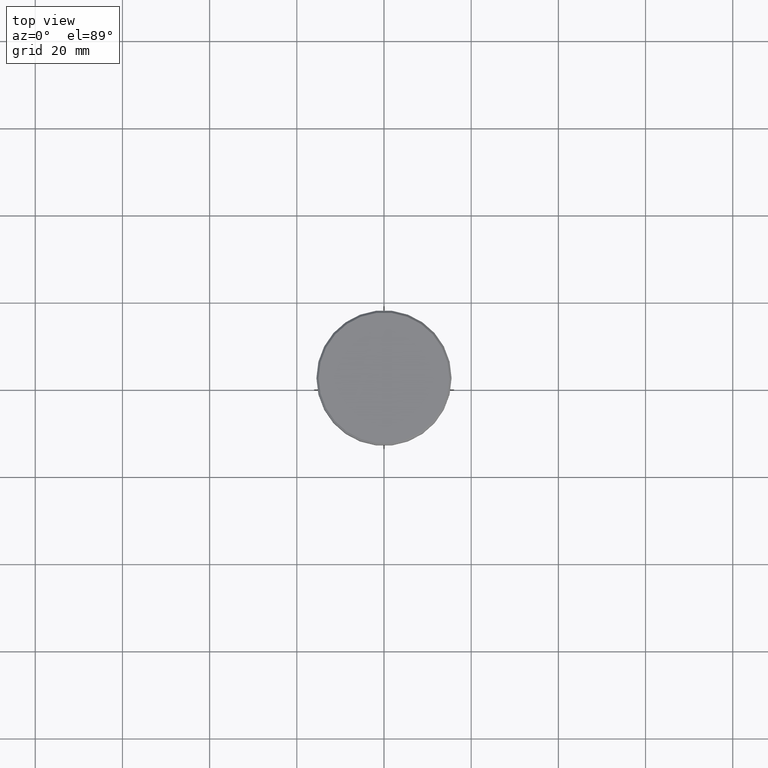
[diagram: clean part render]
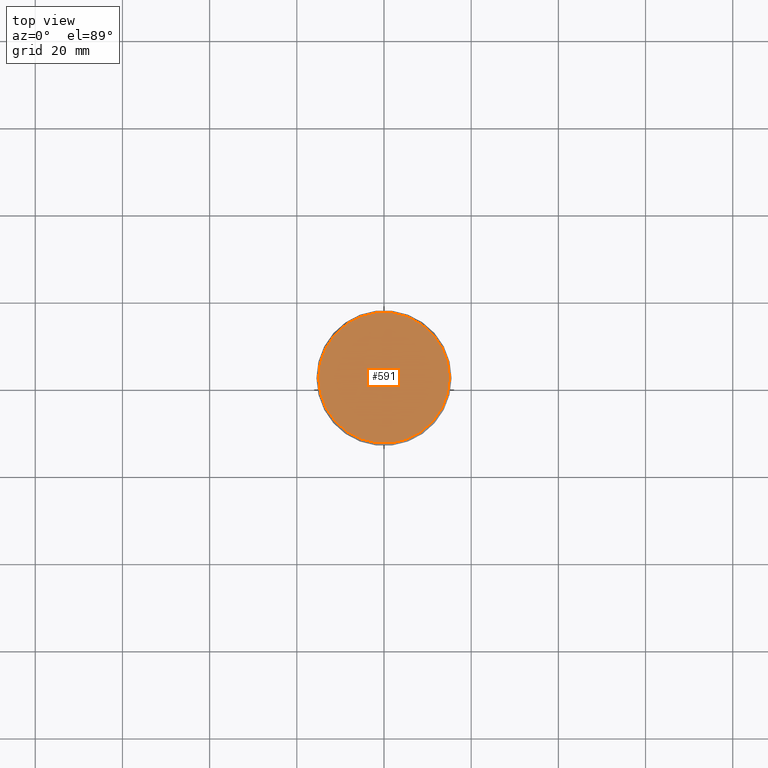
[diagram: same view with one face highlighted and labeled with its STEP entity id]
A machine part, top view. The second image highlights one B-rep face of the part: STEP entity #591.
In plain terms, the highlighted planar face has unit normal (0, -0, 1).
Its self-contained STEP definition (entity closure, byte-faithful):
#8 = CARTESIAN_POINT ( 'NONE',  ( 0.000000000000000000, 0.000000000000000000, 0.000000000000000000 ) ) ;
#33 = DIRECTION ( 'NONE',  ( -0.000000000000000000, -0.000000000000000000, 1.000000000000000000 ) ) ;
#36 = ORIENTED_EDGE ( 'NONE', *, *, #329, .T. ) ;
#151 = CIRCLE ( 'NONE', #539, 14.99999999999998579 ) ;
#241 = FACE_OUTER_BOUND ( 'NONE', #1106, .T. ) ;
#329 = EDGE_CURVE ( 'NONE', #849, #1120, #151, .T. ) ;
#407 = AXIS2_PLACEMENT_3D ( 'NONE', #712, #719, #1079 ) ;
#417 = CARTESIAN_POINT ( 'NONE',  ( -14.99999999999998579, 0.000000000000000000, 0.000000000000000000 ) ) ;
#492 = CARTESIAN_POINT ( 'NONE',  ( 0.000000000000000000, 0.000000000000000000, 0.000000000000000000 ) ) ;
#533 = EDGE_CURVE ( 'NONE', #1120, #849, #808, .T. ) ;
#539 = AXIS2_PLACEMENT_3D ( 'NONE', #8, #565, #746 ) ;
#565 = DIRECTION ( 'NONE',  ( -0.000000000000000000, -0.000000000000000000, 1.000000000000000000 ) ) ;
#591 = ADVANCED_FACE ( 'NONE', ( #241 ), #976, .T. ) ;
#642 = AXIS2_PLACEMENT_3D ( 'NONE', #492, #33, #764 ) ;
#669 = CARTESIAN_POINT ( 'NONE',  ( 14.99999999999998579, 1.867586368699712587E-15, 0.000000000000000000 ) ) ;
#672 = ORIENTED_EDGE ( 'NONE', *, *, #533, .T. ) ;
#712 = CARTESIAN_POINT ( 'NONE',  ( 0.000000000000000000, 0.000000000000000000, 0.000000000000000000 ) ) ;
#719 = DIRECTION ( 'NONE',  ( 0.000000000000000000, -0.000000000000000000, 1.000000000000000000 ) ) ;
#746 = DIRECTION ( 'NONE',  ( 1.000000000000000000, 0.000000000000000000, 0.000000000000000000 ) ) ;
#764 = DIRECTION ( 'NONE',  ( 1.000000000000000000, 0.000000000000000000, 0.000000000000000000 ) ) ;
#808 = CIRCLE ( 'NONE', #642, 14.99999999999998579 ) ;
#849 = VERTEX_POINT ( 'NONE', #669 ) ;
#976 = PLANE ( 'NONE',  #407 ) ;
#1079 = DIRECTION ( 'NONE',  ( 1.000000000000000000, 0.000000000000000000, 0.000000000000000000 ) ) ;
#1106 = EDGE_LOOP ( 'NONE', ( #672, #36 ) ) ;
#1120 = VERTEX_POINT ( 'NONE', #417 ) ;